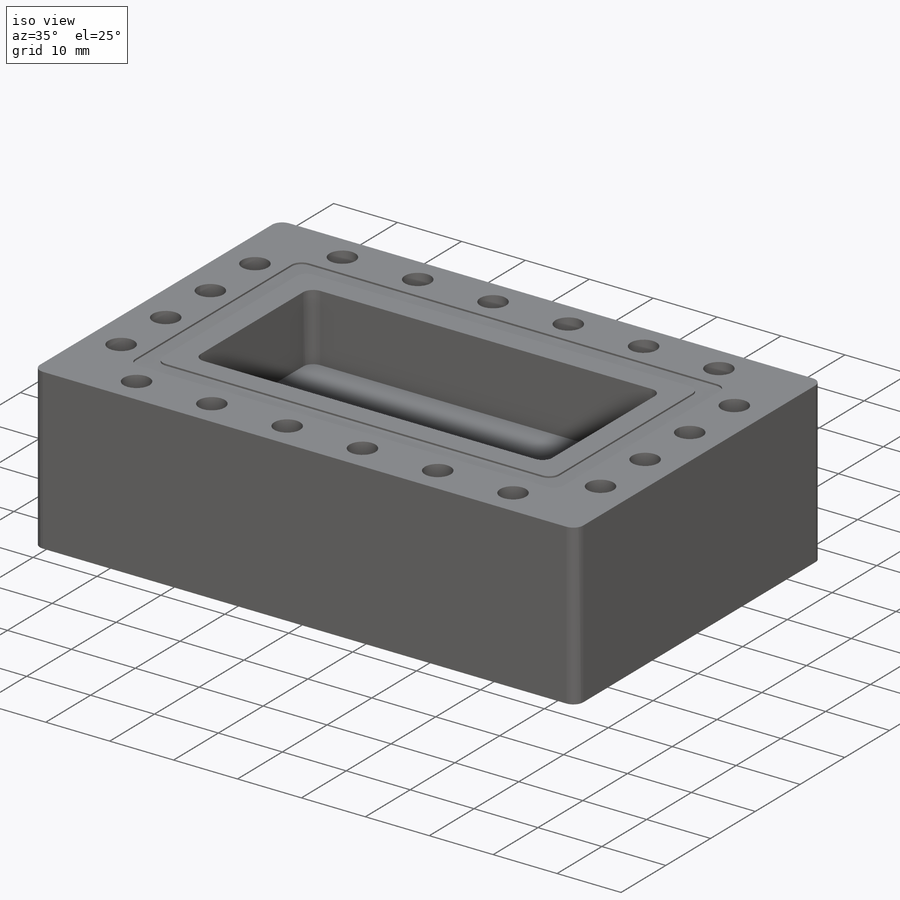
[diagram: iso view]
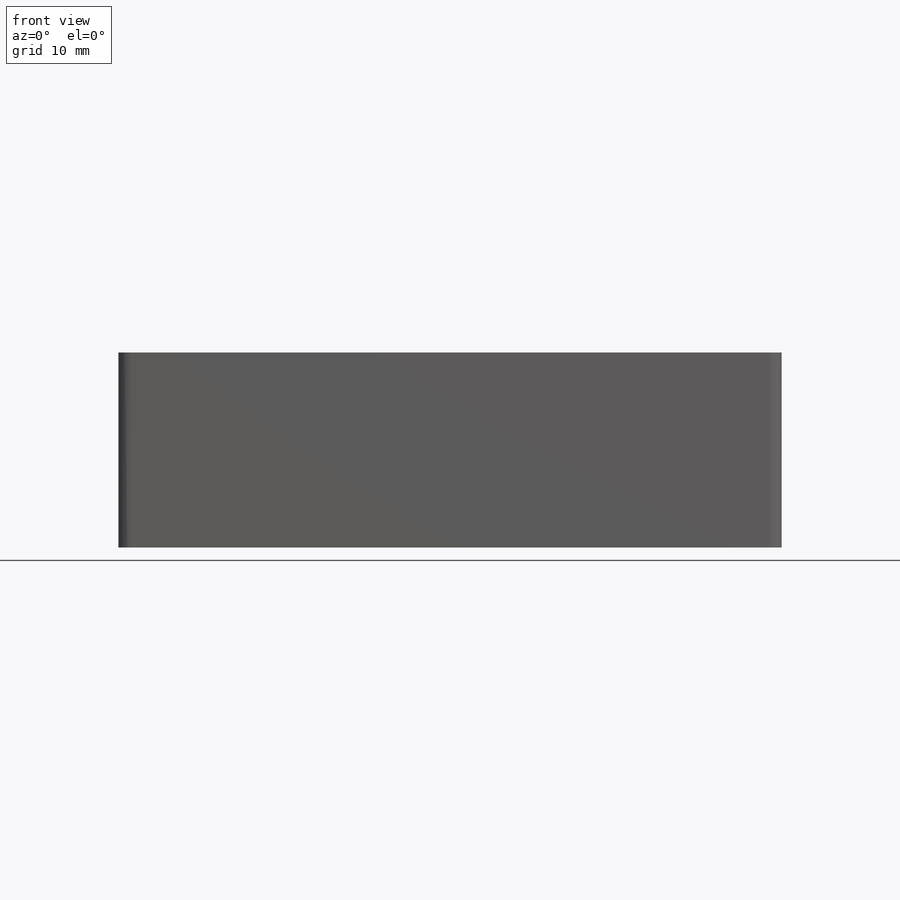
[diagram: front view]
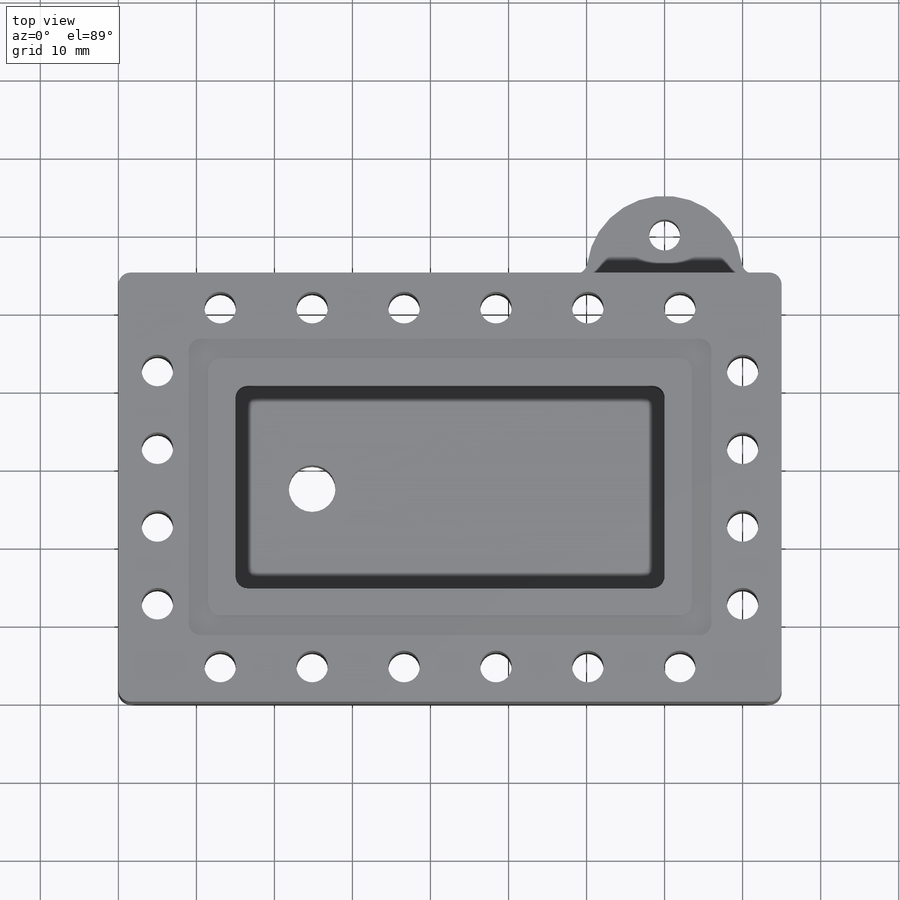
[diagram: top view]
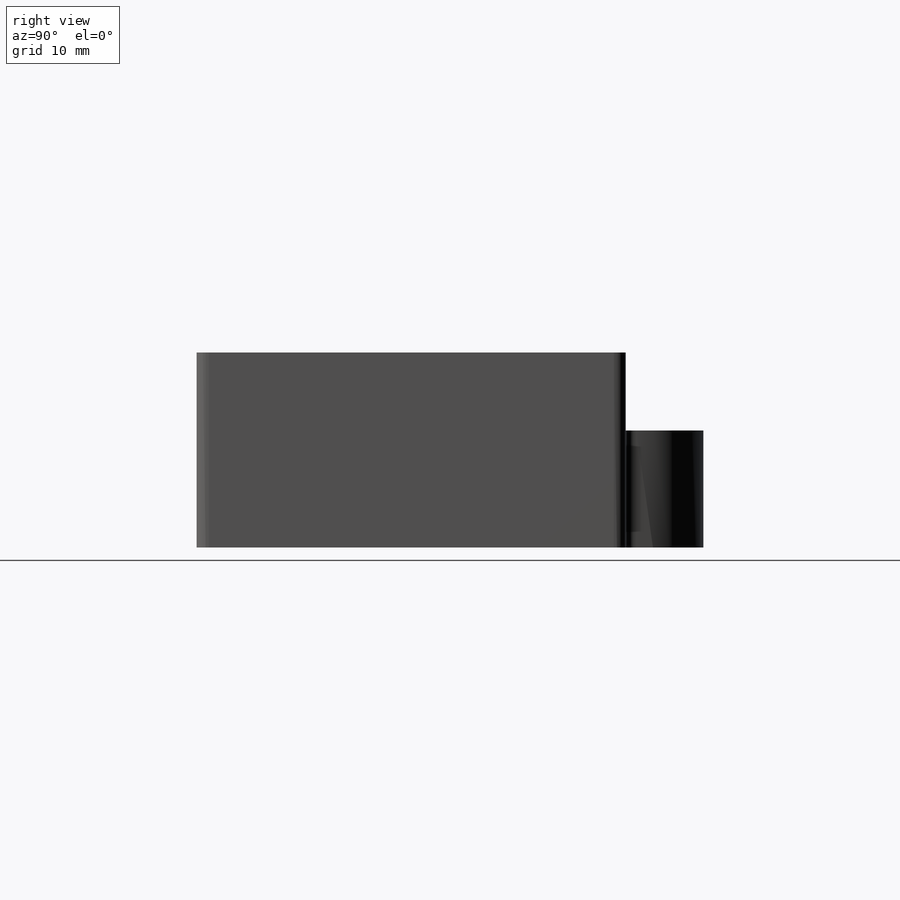
[diagram: right view]
SOLIDWORKS PART (.sldprt)
format: sldprt  version: not decoded by parser v0  size: 345,088 bytes
history: native  units: mm
features: sketch x6, cut_extrude x5, fillet x2, material x1, extrude x1 (+11 scaffold rows collapsed)
feature tree (26):
  scaffold x11  (default folders/planes/origin — collapsed)
  material  "Material <not specified>"
  sketch  "Sketch1"  dims[c1.D3=10.0mm c1.D5=4.0mm c1.D1=85.0mm c1.D2=55.0mm c1.D4=18.0mm c2.D5=8.0mm c2.D4=25.0mm c2.D6=60.0mm]
  extrude  "Boss-Extrude1"  Depth=25mm
  sketch  "Sketch2"  dims[D1=26.0mm D2=55.0mm]
  cut_extrude  "Cut-Extrude1"  Depth=10.5mm
  fillet  "Fillet1"  Radius=1.55mm
  sketch  "Sketch3"  dims[c1.D1=2.5mm c1.D2=~65.237284mm c2.D1=2.5mm c2.D2=3.0mm c2.D3=2.5mm c3.D2=3.5mm]
  cut_extrude  "Cut-Extrude2"  Depth=0.25mm
  fillet  "Fillet2"  Radius=1.55mm
  sketch  "Sketch5"  dims[c1.D2=4.05mm c1.D3=4.05mm c1.D1=4.0mm c2.D3=4.5mm]
  cut_extrude  "Cut-Extrude4"  [1 undecoded]
  sketch  "Sketch6"  dims[D1=6.0mm]
  cut_extrude  "Cut-Extrude5"  [1 undecoded]
  sketch  "Sketch7"
  cut_extrude  "Cut-Extrude6"  Depth=10mm
decode coverage: 11 of 14 modeling features carry decoded parameters
note: ~ marks probable driven/reference dimensions
note: 2 parameter values undecoded
note: suppression state not decoded; provenance and decode notes live in map.json
